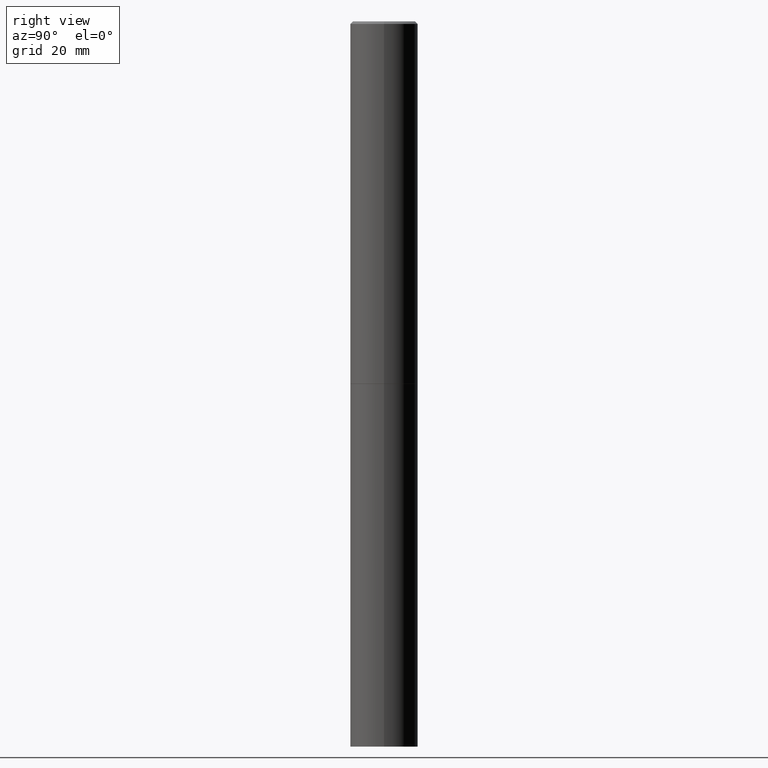
[diagram: clean part render]
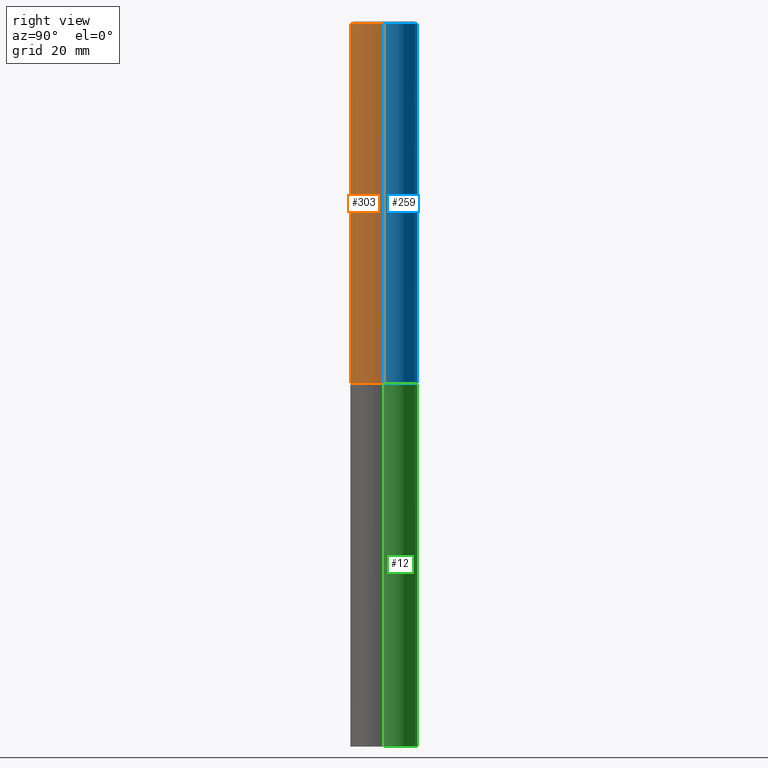
[diagram: same view with three faces highlighted in distinct colors, each labeled with its STEP entity id]
A machine part, right view with three faces highlighted in distinct colors.
Their STEP definitions:

[orange] entity #303 — the highlighted cylindrical surface (edge-blend (fillet) strip) has radius 7.0002 mm, axis along (-0, 0, 1).
#15 = DIRECTION ( 'NONE',  ( 1.000000000000000000, -6.982962677686264344E-15, 0.000000000000000000 ) ) ;
#18 = DIRECTION ( 'NONE',  ( 1.000000000000000000, -6.982962677686267499E-15, 4.876176775795935793E-29 ) ) ;
#41 = CARTESIAN_POINT ( 'NONE',  ( 7.218290275216666916E-29, -1.030580546786331359E-14, -2.951700000000000212 ) ) ;
#42 = ORIENTED_EDGE ( 'NONE', *, *, #310, .T. ) ;
#43 = AXIS2_PLACEMENT_3D ( 'NONE', #41, #164, #15 ) ;
#53 = CARTESIAN_POINT ( 'NONE',  ( 0.000000000000000000, 0.000000000000000000, 0.000000000000000000 ) ) ;
#55 = CIRCLE ( 'NONE', #43, 0.2756000000000000671 ) ;
#64 = DIRECTION ( 'NONE',  ( -2.445468806185136877E-29, 3.491481338843145188E-15, 1.000000000000000000 ) ) ;
#71 = ORIENTED_EDGE ( 'NONE', *, *, #291, .F. ) ;
#72 = AXIS2_PLACEMENT_3D ( 'NONE', #53, #176, #18 ) ;
#75 = CARTESIAN_POINT ( 'NONE',  ( 4.890937612370288923E-31, -6.982962677686312563E-17, -0.02000000000000006287 ) ) ;
#80 = CIRCLE ( 'NONE', #293, 0.2755999999999997341 ) ;
#110 = CARTESIAN_POINT ( 'NONE',  ( -0.2756000000000000671, -3.229561767565248303E-15, -2.951700000000000212 ) ) ;
#120 = CARTESIAN_POINT ( 'NONE',  ( -0.2755999999999997341, 1.854674887193470078E-15, -0.02000000000000006287 ) ) ;
#137 = VERTEX_POINT ( 'NONE', #120 ) ;
#164 = DIRECTION ( 'NONE',  ( -2.445468806185136597E-29, 3.491481338843145583E-15, 1.000000000000000000 ) ) ;
#168 = EDGE_LOOP ( 'NONE', ( #71, #351, #42, #282 ) ) ;
#176 = DIRECTION ( 'NONE',  ( -2.445468806185136597E-29, 3.491481338843145583E-15, 1.000000000000000000 ) ) ;
#188 = VECTOR ( 'NONE', #191, 39.37007874015748143 ) ;
#191 = DIRECTION ( 'NONE',  ( -2.445468806185136877E-29, 3.491481338843145188E-15, 1.000000000000000000 ) ) ;
#197 = VERTEX_POINT ( 'NONE', #250 ) ;
#198 = DIRECTION ( 'NONE',  ( 1.000000000000000000, -6.982962677686265922E-15, 0.000000000000000000 ) ) ;
#201 = FACE_OUTER_BOUND ( 'NONE', #168, .T. ) ;
#214 = CARTESIAN_POINT ( 'NONE',  ( 0.2756000000000000671, -1.223030998183364854E-14, -2.951700000000000212 ) ) ;
#219 = LINE ( 'NONE', #305, #314 ) ;
#220 = DIRECTION ( 'NONE',  ( -2.445468806185136597E-29, 3.491481338843145583E-15, 1.000000000000000000 ) ) ;
#227 = LINE ( 'NONE', #357, #188 ) ;
#245 = EDGE_CURVE ( 'NONE', #137, #197, #80, .T. ) ;
#250 = CARTESIAN_POINT ( 'NONE',  ( 0.2755999999999997341, -1.960582874962695433E-15, -0.02000000000000006287 ) ) ;
#282 = ORIENTED_EDGE ( 'NONE', *, *, #245, .F. ) ;
#291 = EDGE_CURVE ( 'NONE', #304, #137, #227, .T. ) ;
#293 = AXIS2_PLACEMENT_3D ( 'NONE', #75, #220, #198 ) ;
#303 = ADVANCED_FACE ( 'NONE', ( #201 ), #313, .T. ) ;
#304 = VERTEX_POINT ( 'NONE', #110 ) ;
#305 = CARTESIAN_POINT ( 'NONE',  ( 0.2755999999999999006, -1.924504513970334560E-15, 1.343874319409359427E-29 ) ) ;
#310 = EDGE_CURVE ( 'NONE', #360, #197, #219, .T. ) ;
#313 = CYLINDRICAL_SURFACE ( 'NONE', #72, 0.2755999999999999006 ) ;
#314 = VECTOR ( 'NONE', #64, 39.37007874015748143 ) ;
#351 = ORIENTED_EDGE ( 'NONE', *, *, #361, .T. ) ;
#357 = CARTESIAN_POINT ( 'NONE',  ( -0.2755999999999999006, 1.958255779754835406E-15, -1.355658510874251446E-29 ) ) ;
#360 = VERTEX_POINT ( 'NONE', #214 ) ;
#361 = EDGE_CURVE ( 'NONE', #304, #360, #55, .T. ) ;

[blue] entity #259 — the highlighted cylindrical surface (edge-blend (fillet) strip) has radius 7.0002 mm, axis along (-0, 0, 1).
#23 = DIRECTION ( 'NONE',  ( -2.445468806185136597E-29, 3.491481338843145583E-15, 1.000000000000000000 ) ) ;
#24 = DIRECTION ( 'NONE',  ( -2.445468806185136597E-29, 3.491481338843145583E-15, 1.000000000000000000 ) ) ;
#47 = CARTESIAN_POINT ( 'NONE',  ( 4.890937612370288923E-31, -6.982962677686312563E-17, -0.02000000000000006287 ) ) ;
#50 = DIRECTION ( 'NONE',  ( 1.000000000000000000, -6.982962677686264344E-15, 0.000000000000000000 ) ) ;
#64 = DIRECTION ( 'NONE',  ( -2.445468806185136877E-29, 3.491481338843145188E-15, 1.000000000000000000 ) ) ;
#85 = CARTESIAN_POINT ( 'NONE',  ( 7.218290275216666916E-29, -1.030580546786331359E-14, -2.951700000000000212 ) ) ;
#101 = ORIENTED_EDGE ( 'NONE', *, *, #291, .T. ) ;
#110 = CARTESIAN_POINT ( 'NONE',  ( -0.2756000000000000671, -3.229561767565248303E-15, -2.951700000000000212 ) ) ;
#120 = CARTESIAN_POINT ( 'NONE',  ( -0.2755999999999997341, 1.854674887193470078E-15, -0.02000000000000006287 ) ) ;
#134 = AXIS2_PLACEMENT_3D ( 'NONE', #254, #24, #146 ) ;
#137 = VERTEX_POINT ( 'NONE', #120 ) ;
#146 = DIRECTION ( 'NONE',  ( 1.000000000000000000, -6.982962677686267499E-15, 4.876176775795935793E-29 ) ) ;
#174 = FACE_OUTER_BOUND ( 'NONE', #329, .T. ) ;
#188 = VECTOR ( 'NONE', #191, 39.37007874015748143 ) ;
#191 = DIRECTION ( 'NONE',  ( -2.445468806185136877E-29, 3.491481338843145188E-15, 1.000000000000000000 ) ) ;
#194 = AXIS2_PLACEMENT_3D ( 'NONE', #85, #23, #50 ) ;
#197 = VERTEX_POINT ( 'NONE', #250 ) ;
#208 = CIRCLE ( 'NONE', #194, 0.2756000000000000671 ) ;
#214 = CARTESIAN_POINT ( 'NONE',  ( 0.2756000000000000671, -1.223030998183364854E-14, -2.951700000000000212 ) ) ;
#219 = LINE ( 'NONE', #305, #314 ) ;
#227 = LINE ( 'NONE', #357, #188 ) ;
#228 = EDGE_CURVE ( 'NONE', #360, #304, #208, .T. ) ;
#248 = ORIENTED_EDGE ( 'NONE', *, *, #310, .F. ) ;
#250 = CARTESIAN_POINT ( 'NONE',  ( 0.2755999999999997341, -1.960582874962695433E-15, -0.02000000000000006287 ) ) ;
#253 = ORIENTED_EDGE ( 'NONE', *, *, #228, .T. ) ;
#254 = CARTESIAN_POINT ( 'NONE',  ( 0.000000000000000000, 0.000000000000000000, 0.000000000000000000 ) ) ;
#256 = DIRECTION ( 'NONE',  ( -2.445468806185136597E-29, 3.491481338843145583E-15, 1.000000000000000000 ) ) ;
#257 = CIRCLE ( 'NONE', #338, 0.2755999999999997341 ) ;
#259 = ADVANCED_FACE ( 'NONE', ( #174 ), #285, .T. ) ;
#262 = EDGE_CURVE ( 'NONE', #197, #137, #257, .T. ) ;
#285 = CYLINDRICAL_SURFACE ( 'NONE', #134, 0.2755999999999999006 ) ;
#291 = EDGE_CURVE ( 'NONE', #304, #137, #227, .T. ) ;
#304 = VERTEX_POINT ( 'NONE', #110 ) ;
#305 = CARTESIAN_POINT ( 'NONE',  ( 0.2755999999999999006, -1.924504513970334560E-15, 1.343874319409359427E-29 ) ) ;
#310 = EDGE_CURVE ( 'NONE', #360, #197, #219, .T. ) ;
#314 = VECTOR ( 'NONE', #64, 39.37007874015748143 ) ;
#324 = ORIENTED_EDGE ( 'NONE', *, *, #262, .F. ) ;
#329 = EDGE_LOOP ( 'NONE', ( #253, #101, #324, #248 ) ) ;
#331 = DIRECTION ( 'NONE',  ( 1.000000000000000000, -6.982962677686265922E-15, 0.000000000000000000 ) ) ;
#338 = AXIS2_PLACEMENT_3D ( 'NONE', #47, #256, #331 ) ;
#357 = CARTESIAN_POINT ( 'NONE',  ( -0.2755999999999999006, 1.958255779754835406E-15, -1.355658510874251446E-29 ) ) ;
#360 = VERTEX_POINT ( 'NONE', #214 ) ;

[green] entity #12 — the highlighted cylindrical surface (edge-blend (fillet) strip) has radius 7.0002 mm, axis along (-0, 0, 1).
#5 = VECTOR ( 'NONE', #135, 39.37007874015748143 ) ;
#11 = CARTESIAN_POINT ( 'NONE',  ( 0.2756000000000000116, -1.924504513970335348E-15, 1.343874319409359987E-29 ) ) ;
#12 = ADVANCED_FACE ( 'NONE', ( #226 ), #332, .T. ) ;
#29 = CIRCLE ( 'NONE', #70, 0.2756000000000000116 ) ;
#40 = EDGE_CURVE ( 'NONE', #165, #170, #29, .T. ) ;
#60 = AXIS2_PLACEMENT_3D ( 'NONE', #84, #355, #151 ) ;
#70 = AXIS2_PLACEMENT_3D ( 'NONE', #333, #86, #177 ) ;
#74 = VERTEX_POINT ( 'NONE', #240 ) ;
#78 = CARTESIAN_POINT ( 'NONE',  ( -0.2756000000000000116, -1.350586421811533611E-14, -2.952700000000000102 ) ) ;
#81 = EDGE_CURVE ( 'NONE', #74, #170, #212, .T. ) ;
#84 = CARTESIAN_POINT ( 'NONE',  ( 0.000000000000000000, 0.000000000000000000, 0.000000000000000000 ) ) ;
#86 = DIRECTION ( 'NONE',  ( -2.445468806185136597E-29, 3.491481338843145583E-15, 1.000000000000000000 ) ) ;
#135 = DIRECTION ( 'NONE',  ( -2.445468806185136877E-29, 3.491481338843145188E-15, 1.000000000000000000 ) ) ;
#144 = DIRECTION ( 'NONE',  ( 1.000000000000000000, -6.982962677686265922E-15, 0.000000000000000000 ) ) ;
#151 = DIRECTION ( 'NONE',  ( 1.000000000000000000, -6.982962677686267499E-15, 4.876176775795935793E-29 ) ) ;
#161 = LINE ( 'NONE', #11, #5 ) ;
#165 = VERTEX_POINT ( 'NONE', #172 ) ;
#170 = VERTEX_POINT ( 'NONE', #78 ) ;
#172 = CARTESIAN_POINT ( 'NONE',  ( 0.2756000000000000116, -1.223380146317248997E-14, -2.952700000000000102 ) ) ;
#177 = DIRECTION ( 'NONE',  ( 1.000000000000000000, -6.982962677686265922E-15, 0.000000000000000000 ) ) ;
#187 = DIRECTION ( 'NONE',  ( -2.445468806185136877E-29, 3.491481338843145188E-15, 1.000000000000000000 ) ) ;
#192 = VERTEX_POINT ( 'NONE', #221 ) ;
#202 = EDGE_CURVE ( 'NONE', #192, #74, #346, .T. ) ;
#212 = LINE ( 'NONE', #322, #243 ) ;
#216 = EDGE_LOOP ( 'NONE', ( #330, #327, #347, #249 ) ) ;
#221 = CARTESIAN_POINT ( 'NONE',  ( 0.2756000000000000116, -2.254344756050852692E-14, -5.905499999999999972 ) ) ;
#226 = FACE_OUTER_BOUND ( 'NONE', #216, .T. ) ;
#240 = CARTESIAN_POINT ( 'NONE',  ( -0.2756000000000000116, -1.350586421811533611E-14, -5.905499999999999972 ) ) ;
#243 = VECTOR ( 'NONE', #187, 39.37007874015748143 ) ;
#249 = ORIENTED_EDGE ( 'NONE', *, *, #344, .F. ) ;
#322 = CARTESIAN_POINT ( 'NONE',  ( -0.2756000000000000116, 1.958255779754836195E-15, -1.355658510874252007E-29 ) ) ;
#327 = ORIENTED_EDGE ( 'NONE', *, *, #81, .T. ) ;
#328 = CARTESIAN_POINT ( 'NONE',  ( 1.444171603492632270E-28, -2.061894304653819197E-14, -5.905499999999999972 ) ) ;
#330 = ORIENTED_EDGE ( 'NONE', *, *, #202, .T. ) ;
#332 = CYLINDRICAL_SURFACE ( 'NONE', #60, 0.2756000000000000116 ) ;
#333 = CARTESIAN_POINT ( 'NONE',  ( 7.220735744022852519E-29, -1.030929694920215502E-14, -2.952700000000000102 ) ) ;
#344 = EDGE_CURVE ( 'NONE', #192, #165, #161, .T. ) ;
#346 = CIRCLE ( 'NONE', #358, 0.2756000000000000116 ) ;
#347 = ORIENTED_EDGE ( 'NONE', *, *, #40, .F. ) ;
#349 = DIRECTION ( 'NONE',  ( -2.445468806185136597E-29, 3.491481338843145583E-15, 1.000000000000000000 ) ) ;
#355 = DIRECTION ( 'NONE',  ( -2.445468806185136597E-29, 3.491481338843145583E-15, 1.000000000000000000 ) ) ;
#358 = AXIS2_PLACEMENT_3D ( 'NONE', #328, #349, #144 ) ;